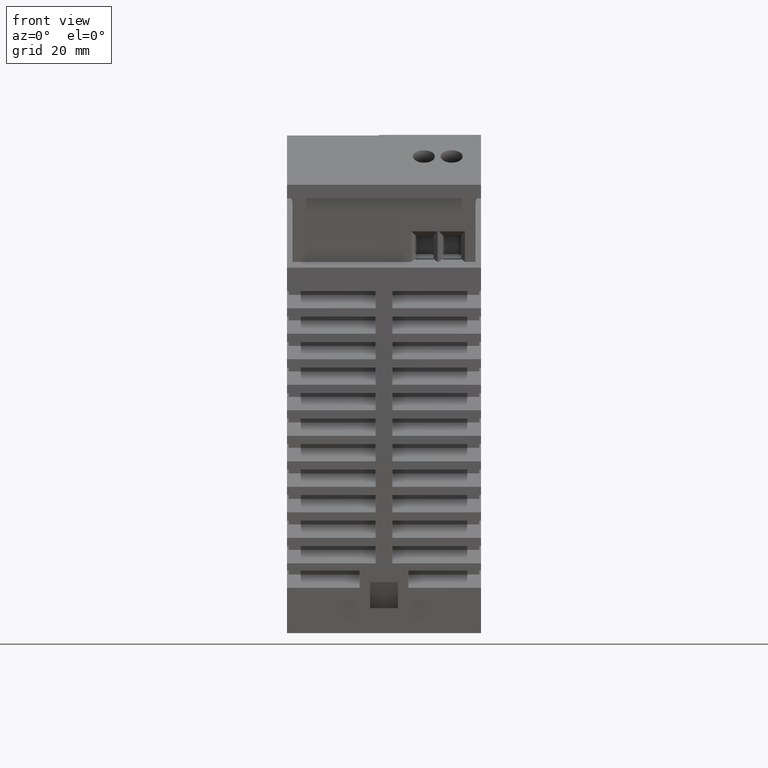
[diagram: clean part render]
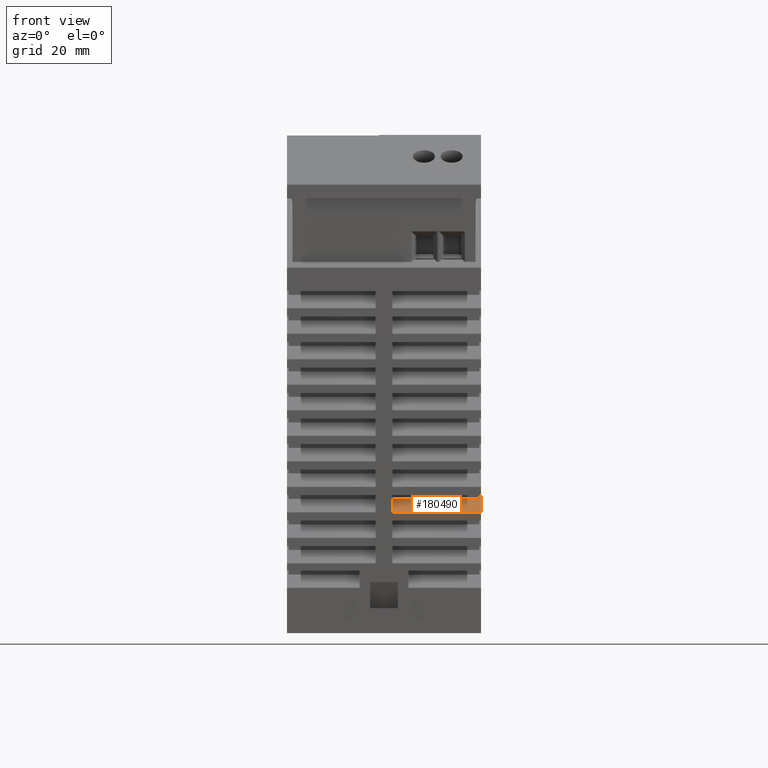
[diagram: same view with one face highlighted and labeled with its STEP entity id]
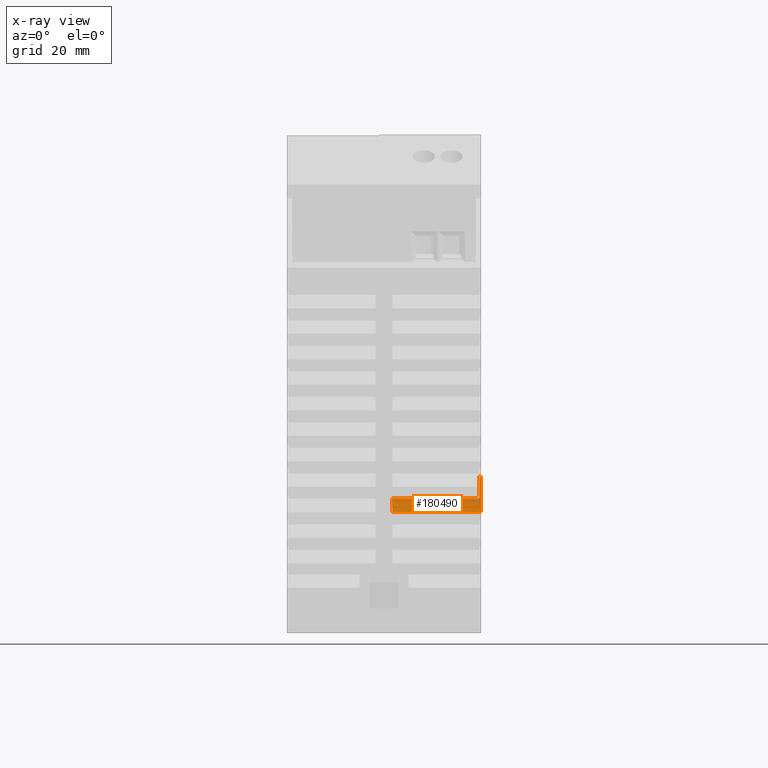
[diagram: x-ray of the same camera — body ghosted, the highlighted face saturated]
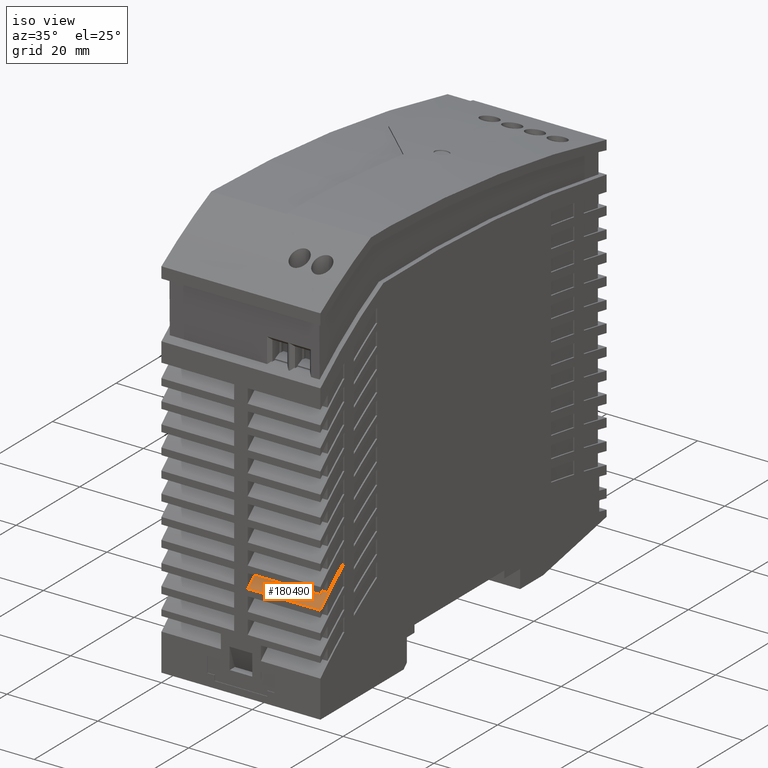
[diagram: same view with one face highlighted and labeled with its STEP entity id]
A machine part, front view. The second image highlights one B-rep face of the part: STEP entity #180490.
The next image is the same camera in x-ray: the body ghosted, the highlighted face saturated — about 0% of this face is hidden behind the body in this view.
A second angle (iso view) of the same face is appended — the face is thin or edge-on in the first view.
In plain terms, the highlighted cylindrical surface (partial cylindrical patch) has radius 111 mm, axis along (1, 0, 0).
Its self-contained STEP definition (entity closure, byte-faithful):
#7740=CARTESIAN_POINT('',(-45.0015236073532,21.8196322079584,-2.5));
#7750=VERTEX_POINT('',#7740);
#7780=CARTESIAN_POINT('',(-45.0015236073532,21.8196322079584,-12.5));
#7790=DIRECTION('',(0.,0.,1.));
#7800=VECTOR('',#7790,1.);
#7810=LINE('',#7780,#7800);
#7820=CARTESIAN_POINT('',(-45.0015236073532,21.8196322079584,13.5));
#7830=VERTEX_POINT('',#7820);
#7840=EDGE_CURVE('',#7750,#7830,#7810,.T.);
#39150=CARTESIAN_POINT('',(-37.4715236073768,28.2056714261642,13.2));
#39160=DIRECTION('',(0.,0.,1.));
#39170=VECTOR('',#39160,1.);
#39180=LINE('',#39150,#39170);
#39190=CARTESIAN_POINT('',(-37.4715236073769,28.2056714261643,13.2));
#39200=VERTEX_POINT('',#39190);
#39210=CARTESIAN_POINT('',(-37.4715236073769,28.2056714261643,13.5));
#39220=VERTEX_POINT('',#39210);
#39230=EDGE_CURVE('',#39200,#39220,#39180,.T.);
#54200=CARTESIAN_POINT('',(-42.3015236073671,24.2433246963183,13.2));
#54210=VERTEX_POINT('',#54200);
#54320=CARTESIAN_POINT('',(30.4869845880834,-59.5590205851885,13.2));
#54330=DIRECTION('',(0.,0.,1.));
#54340=DIRECTION('',(0.,1.,0.));
#54350=AXIS2_PLACEMENT_3D('',#54320,#54330,#54340);
#54360=CIRCLE('',#54350,111.);
#54370=EDGE_CURVE('',#39200,#54210,#54360,.T.);
#125200=CARTESIAN_POINT('',(-42.3015236073671,24.2433246963183,-2.5));
#125210=VERTEX_POINT('',#125200);
#125240=CARTESIAN_POINT('',(30.4869845880834,-59.5590205851885,-2.5));
#125250=DIRECTION('',(0.,0.,1.));
#125260=DIRECTION('',(0.,1.,0.));
#125270=AXIS2_PLACEMENT_3D('',#125240,#125250,#125260);
#125280=CIRCLE('',#125270,111.);
#125290=EDGE_CURVE('',#125210,#7750,#125280,.T.);
#180110=CARTESIAN_POINT('',(-42.3015236073671,24.2433246963183,-12.5));
#180120=DIRECTION('',(0.,0.,1.));
#180130=VECTOR('',#180120,1.);
#180140=LINE('',#180110,#180130);
#180150=EDGE_CURVE('',#125210,#54210,#180140,.T.);
#180300=CARTESIAN_POINT('',(30.4869845880834,-59.5590205851885,-12.5));
#180310=DIRECTION('',(0.,0.,1.));
#180320=DIRECTION('',(0.,1.,0.));
#180330=AXIS2_PLACEMENT_3D('',#180300,#180310,#180320);
#180340=CYLINDRICAL_SURFACE('',#180330,111.);
#180350=ORIENTED_EDGE('',*,*,#7840,.T.);
#180360=ORIENTED_EDGE('',*,*,#125290,.T.);
#180370=ORIENTED_EDGE('',*,*,#180150,.F.);
#180380=ORIENTED_EDGE('',*,*,#54370,.T.);
#180390=ORIENTED_EDGE('',*,*,#39230,.F.);
#180400=CARTESIAN_POINT('',(30.4869845880834,-59.5590205851885,13.5));
#180410=DIRECTION('',(0.,0.,1.));
#180420=DIRECTION('',(0.,1.,0.));
#180430=AXIS2_PLACEMENT_3D('',#180400,#180410,#180420);
#180440=CIRCLE('',#180430,111.);
#180450=EDGE_CURVE('',#39220,#7830,#180440,.T.);
#180460=ORIENTED_EDGE('',*,*,#180450,.F.);
#180470=EDGE_LOOP('',(#180460,#180390,#180380,#180370,#180360,#180350));
#180480=FACE_OUTER_BOUND('',#180470,.T.);
#180490=ADVANCED_FACE('',(#180480),#180340,.T.);